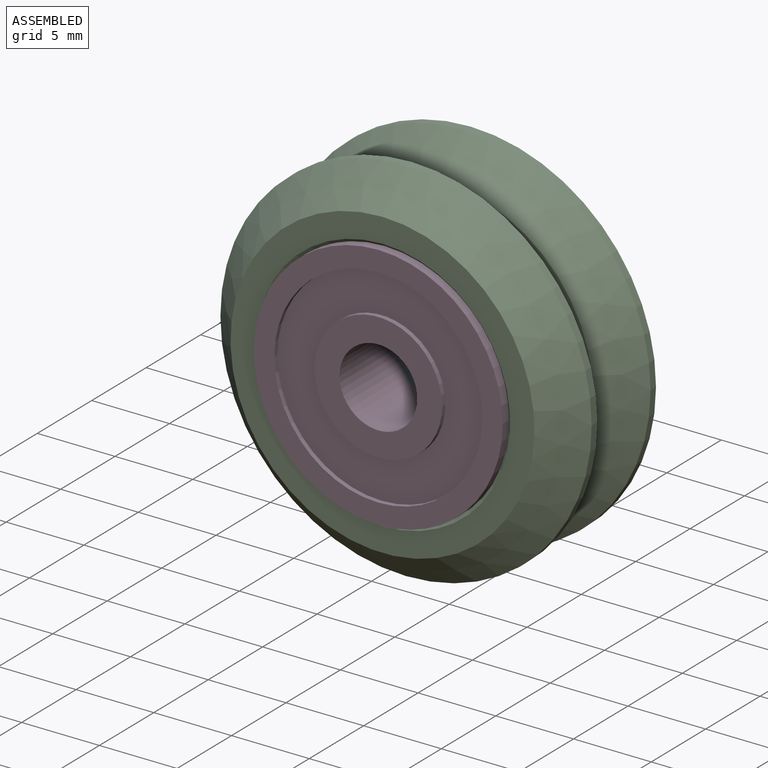
[diagram: assembled view]
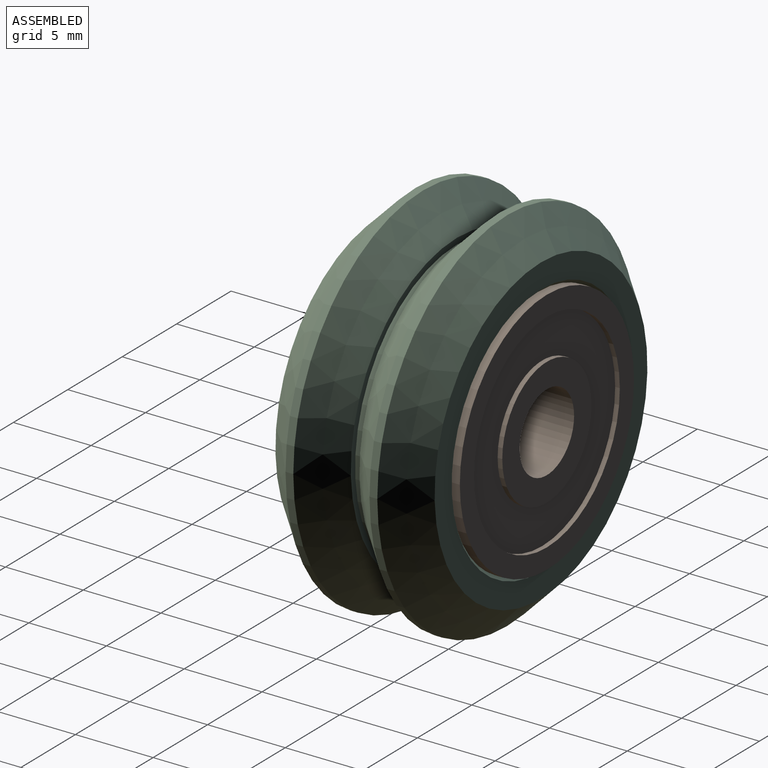
[diagram: assembled view, second angle]
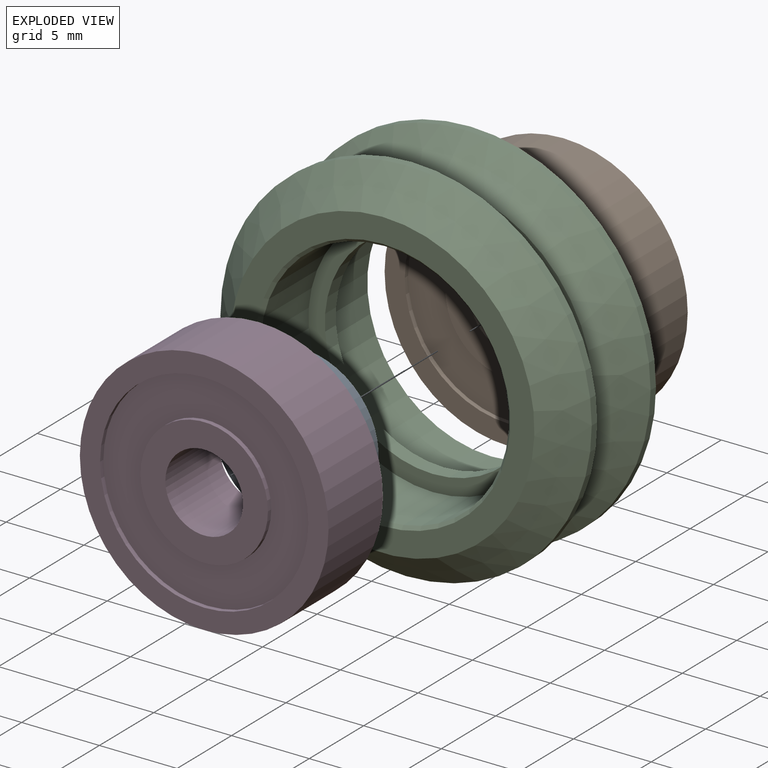
[diagram: exploded view]
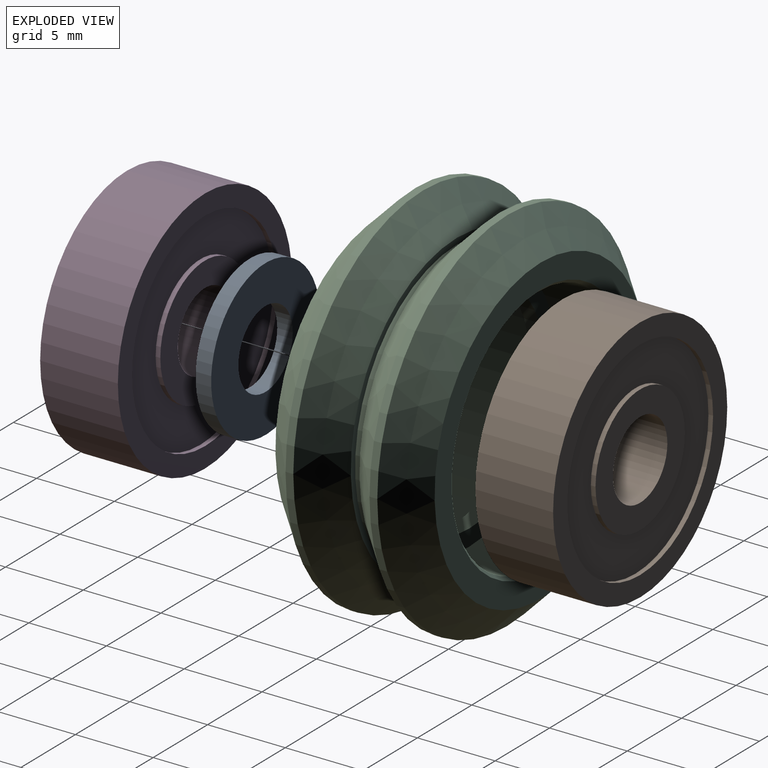
[diagram: exploded view, second angle]
ASSEMBLY  parts=4 mates=3
PART A: 4 faces, bbox 1x10x10 mm
  f0: cylinder r=2.5mm len=5mm, axis (-1,0,0), area 15.7mm2, adj f2,f3
  f1: cylinder r=5mm len=10mm, axis (-1,0,0), area 31.4mm2, adj f2,f3
  f2: plane 10x10mm, normal (1,0,0), area 58.9mm2, adj f0,f1
  f3: plane 10x10mm, normal (-1,0,0), area 58.9mm2, adj f0,f1
PART B: 12 faces, bbox 5x16x16 mm
  f0: plane 16x16mm, normal (1,0,0), area 60mm2, adj f1,f11
  f1: cylinder r=8mm len=16mm, axis (-1,0,0), area 251.3mm2, adj f0,f2
  f2: plane 16x16mm, normal (-1,0,0), area 60mm2, adj f1,f3
  f3: cylinder r=6.7mm len=13.4mm, axis (-1,0,0), area 12.6mm2, adj f2,f4
  f4: plane 13.4x13.4mm, normal (-1,0,0), area 88.2mm2, adj f3,f5
  f5: cylinder r=4.1mm len=8.2mm, axis (-1,0,0), area 7.7mm2, adj f4,f6
  f6: plane 8.2x8.2mm, normal (-1,0,0), area 33.2mm2, adj f5,f7
  f7: cylinder r=2.5mm len=5mm, axis (-1,0,0), area 78.5mm2, adj f6,f8
  f8: plane 8.2x8.2mm, normal (1,0,0), area 33.2mm2, adj f7,f9
  f9: cylinder r=4.1mm len=8.2mm, axis (-1,0,0), area 7.7mm2, adj f8,f10
  f10: plane 13.4x13.4mm, normal (1,0,0), area 88.2mm2, adj f9,f11
  f11: cylinder r=6.7mm len=13.4mm, axis (-1,0,0), area 12.6mm2, adj f0,f10
PART C: 18 faces, bbox 23.9x10.2x23.9 mm
  f0: cone r=8.21mm half-angle=45deg, axis (0,1,0), area 15.3mm2, adj f1,f17
  f1: plane 19.55x19.55mm, normal (0,1,0), area 88.5mm2, adj f0,f2
  f2: cone r=11.95mm half-angle=45deg, axis (0,-1,0), area 209.3mm2, adj f1,f3
  f3: cylinder r=11.95mm len=23.89mm, axis (0,1,0), area 37.5mm2, adj f2,f4
  f4: cone r=9.77mm half-angle=45deg, axis (0,1,0), area 210mm2, adj f3,f5
  f5: plane 19.54x19.54mm, normal (0,-1,0), area 23.7mm2, adj f4,f6
  f6: cylinder r=9.38mm len=18.75mm, axis (0,1,0), area 32.4mm2, adj f5,f7
  f7: plane 19.54x19.54mm, normal (0,1,0), area 23.7mm2, adj f6,f8
  f8: cone r=11.95mm half-angle=45deg, axis (0,-1,0), area 210mm2, adj f7,f9
  f9: cylinder r=11.95mm len=23.89mm, axis (0,1,0), area 37.5mm2, adj f8,f10
  f10: cone r=9.78mm half-angle=45deg, axis (0,1,0), area 209.3mm2, adj f9,f11
  f11: plane 19.55x19.55mm, normal (0,-1,0), area 88.5mm2, adj f10,f12
  f12: cone r=8mm half-angle=45deg, axis (0,-1,0), area 15.3mm2, adj f11,f13
  f13: cylinder r=8mm len=16mm, axis (0,1,0), area 221.5mm2, adj f12,f14
  f14: plane 16x16mm, normal (0,-1,0), area 49.4mm2, adj f13,f15
  f15: cylinder r=6.94mm len=13.89mm, axis (0,1,0), area 43.6mm2, adj f14,f16
  f16: plane 16x16mm, normal (0,1,0), area 49.4mm2, adj f15,f17
  f17: cylinder r=8mm len=16mm, axis (0,1,0), area 221.5mm2, adj f0,f16
PART D: same geometry as B
PLACE A rot(axis=(0.71,-0.71,0),180deg) t=(-13.21,-5.92,1.82)mm
PLACE B rot(axis=(0.58,-0.58,-0.58),120deg) t=(-13.21,-0.92,1.82)mm
PLACE C t=(-13.21,-6.42,1.82)mm fixed
PLACE D rot(axis=(-0.58,-0.58,0.58),120deg) t=(-13.21,-11.92,1.82)mm
MATE fastened A.f0 <-> D.f1  axis (0,-1,0) through (-13.21,-6.92,1.82)mm
MATE fastened D.f1 <-> C.f0  axis (0,1,0) through (-13.21,-6.92,1.82)mm
MATE fastened B.f1 <-> C.f0  axis (0,-1,0) through (-13.21,-5.92,1.82)mm
